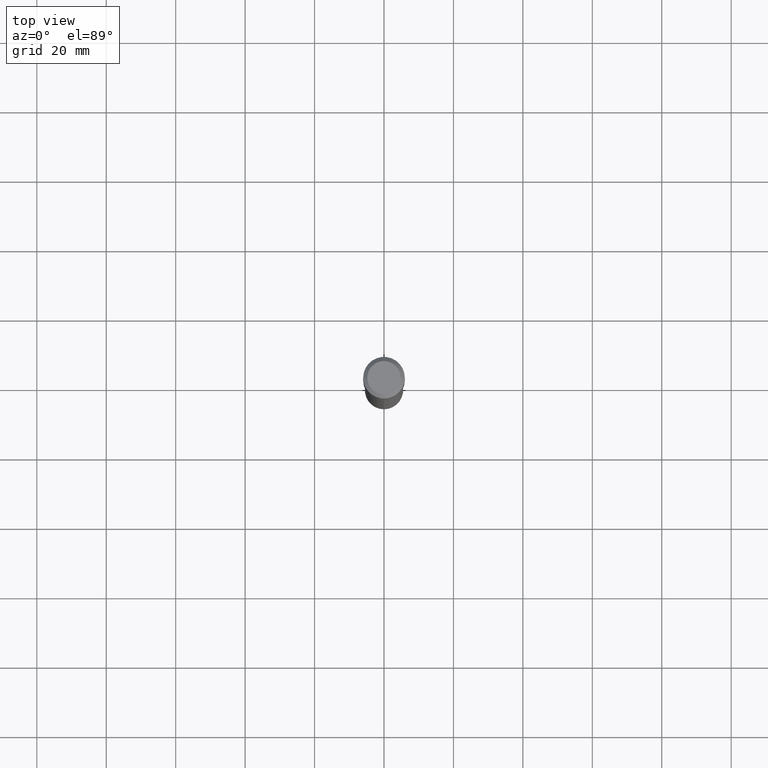
[diagram: clean part render]
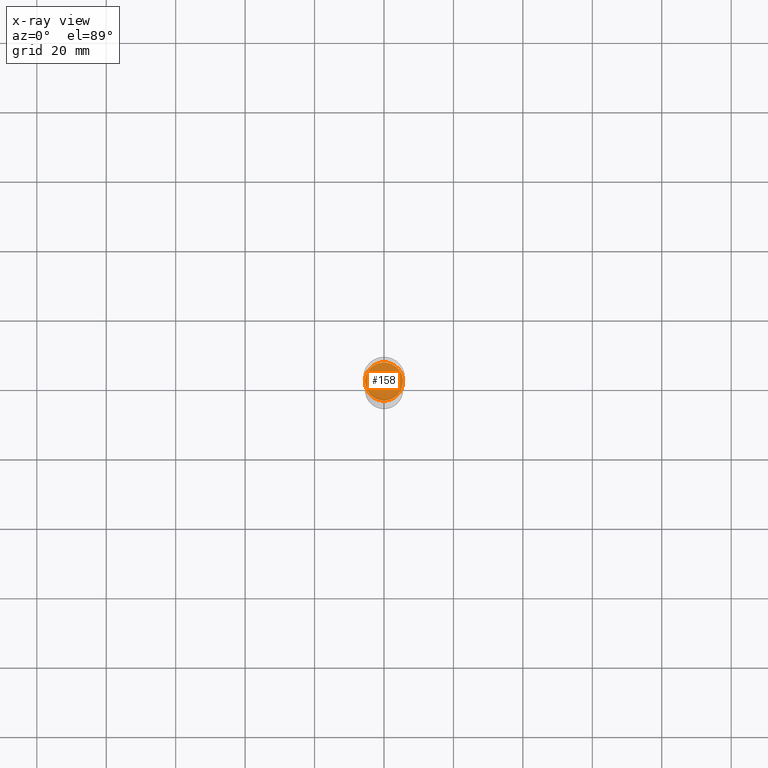
[diagram: x-ray — body ghosted, one internal face saturated and labeled with its STEP entity id]
A machine part, top view, then the same camera in x-ray: the body is ghosted and one INTERNAL B-rep face — a face not visible from any outside direction — is saturated and labeled: STEP entity #158.
In plain terms, the highlighted planar face has unit normal (-0, 0, 1).
Its self-contained STEP definition (entity closure, byte-faithful):
#5 = DIRECTION ( 'NONE',  ( 1.000000000000000000, -6.982962677686265922E-15, 4.876176775795935793E-29 ) ) ;
#18 = DIRECTION ( 'NONE',  ( -2.445468806185136597E-29, 3.491481338843145583E-15, 1.000000000000000000 ) ) ;
#35 = FACE_OUTER_BOUND ( 'NONE', #392, .T. ) ;
#128 = CIRCLE ( 'NONE', #400, 0.2160500000000000198 ) ;
#146 = CARTESIAN_POINT ( 'NONE',  ( 6.210757127068392441E-29, -8.867315156259937848E-15, -2.539700000000000291 ) ) ;
#154 = CIRCLE ( 'NONE', #431, 0.2160500000000000198 ) ;
#158 = ADVANCED_FACE ( 'NONE', ( #35 ), #490, .F. ) ;
#185 = DIRECTION ( 'NONE',  ( -2.438088387897960049E-29, 3.491481338843145188E-15, 1.000000000000000000 ) ) ;
#196 = CARTESIAN_POINT ( 'NONE',  ( 6.210757127068392441E-29, -8.867315156259937848E-15, -2.539700000000000291 ) ) ;
#211 = CARTESIAN_POINT ( 'NONE',  ( 6.210757127068392441E-29, -8.867315156259937848E-15, -2.539700000000000291 ) ) ;
#243 = DIRECTION ( 'NONE',  ( 1.000000000000000000, -6.982962677686266711E-15, 0.000000000000000000 ) ) ;
#293 = DIRECTION ( 'NONE',  ( -2.445468806185136597E-29, 3.491481338843145583E-15, 1.000000000000000000 ) ) ;
#305 = EDGE_CURVE ( 'NONE', #386, #425, #154, .T. ) ;
#350 = ORIENTED_EDGE ( 'NONE', *, *, #305, .F. ) ;
#359 = CARTESIAN_POINT ( 'NONE',  ( -0.2160500000000000198, -7.329538348476128871E-15, -2.539700000000000291 ) ) ;
#386 = VERTEX_POINT ( 'NONE', #411 ) ;
#392 = EDGE_LOOP ( 'NONE', ( #350, #403 ) ) ;
#400 = AXIS2_PLACEMENT_3D ( 'NONE', #211, #293, #243 ) ;
#403 = ORIENTED_EDGE ( 'NONE', *, *, #422, .F. ) ;
#411 = CARTESIAN_POINT ( 'NONE',  ( 0.2160500000000000198, -1.037598424277405566E-14, -2.539700000000000291 ) ) ;
#422 = EDGE_CURVE ( 'NONE', #425, #386, #128, .T. ) ;
#424 = DIRECTION ( 'NONE',  ( 1.000000000000000000, -6.982962677686266711E-15, 0.000000000000000000 ) ) ;
#425 = VERTEX_POINT ( 'NONE', #359 ) ;
#431 = AXIS2_PLACEMENT_3D ( 'NONE', #196, #18, #424 ) ;
#486 = AXIS2_PLACEMENT_3D ( 'NONE', #146, #185, #5 ) ;
#490 = PLANE ( 'NONE',  #486 ) ;